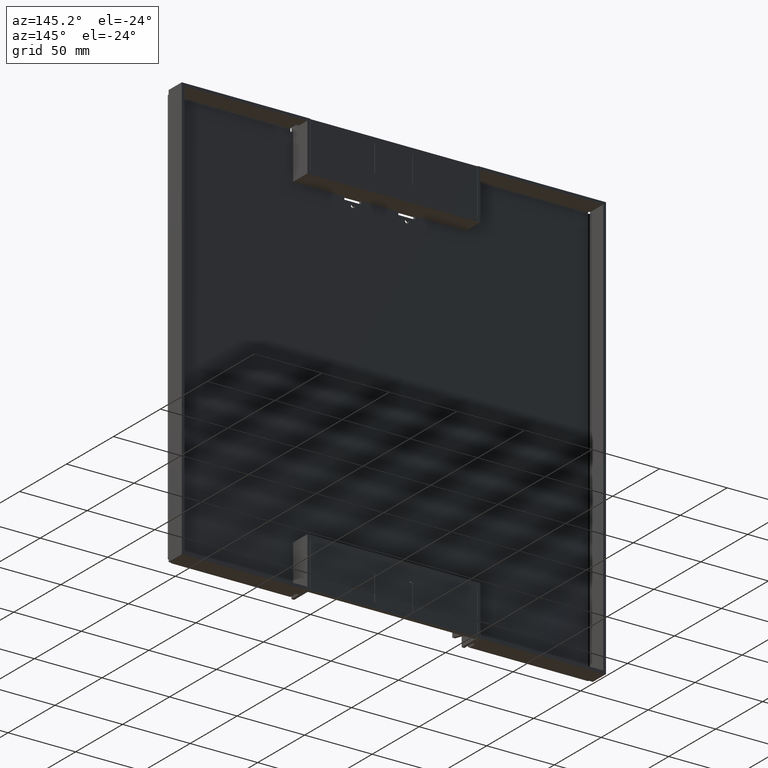
[diagram: clean part render]
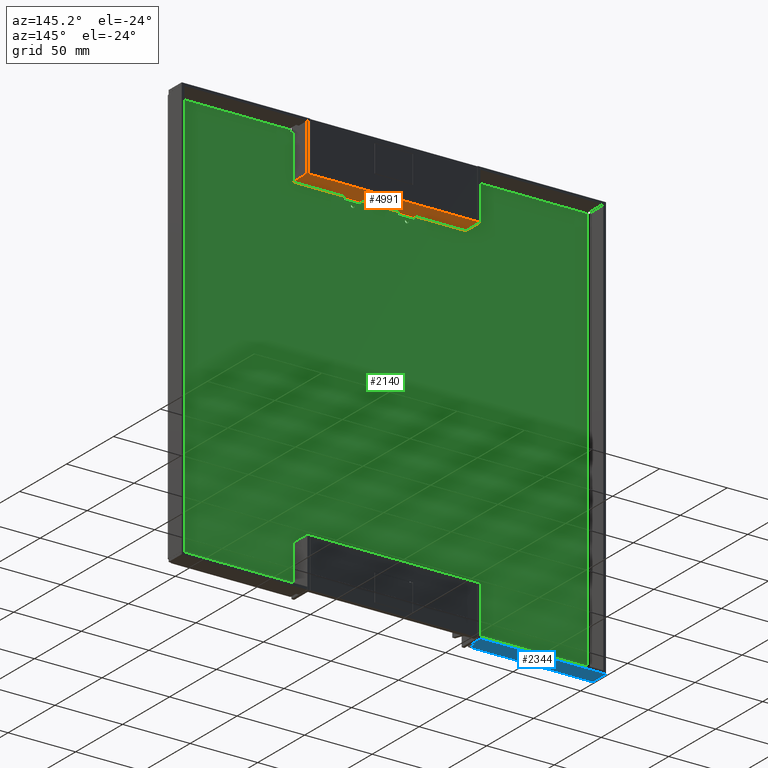
[diagram: same view with three faces highlighted in distinct colors, each labeled with its STEP entity id]
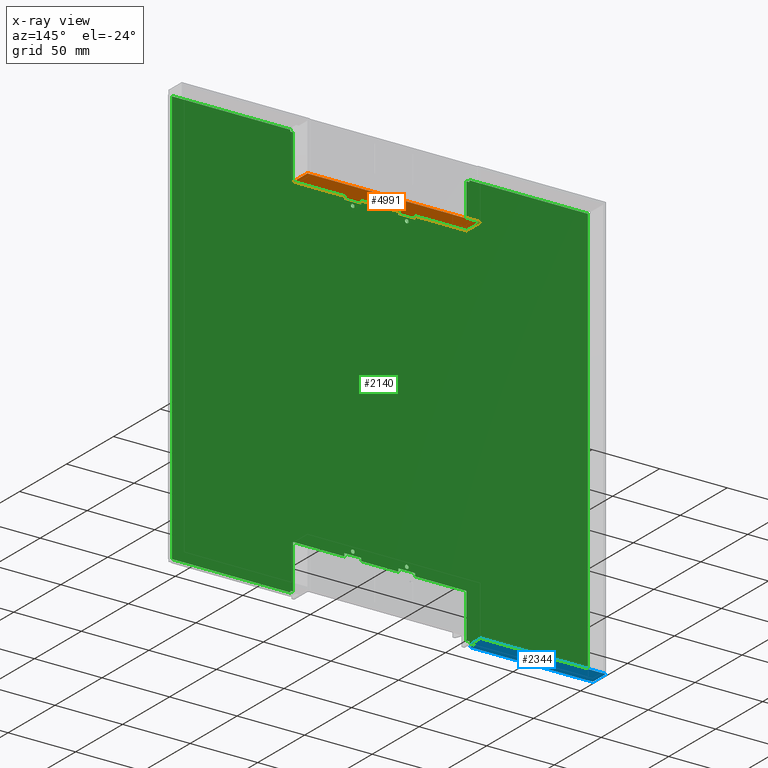
[diagram: x-ray of the same camera — body ghosted, the three highlighted faces saturated]
A machine part, auxiliary view with three faces highlighted in distinct colors.
The next image is the same camera in x-ray (body ghosted, the three faces saturated) — at least one of them is partly hidden behind the body in this view.
Their STEP definitions:

[orange] entity #4991 — the highlighted planar face has unit normal (0, 0, -1).
#4744=DIRECTION('',(-1.E0,0.E0,0.E0));
#4745=VECTOR('',#4744,1.28E2);
#4746=CARTESIAN_POINT('',(6.4E1,0.E0,-3.7E1));
#4747=LINE('',#4746,#4745);
#4758=DIRECTION('',(1.E0,0.E0,0.E0));
#4759=VECTOR('',#4758,1.28E2);
#4760=CARTESIAN_POINT('',(-6.4E1,1.7E1,-3.7E1));
#4761=LINE('',#4760,#4759);
#4793=DIRECTION('',(0.E0,-1.E0,0.E0));
#4794=VECTOR('',#4793,1.7E1);
#4795=CARTESIAN_POINT('',(-6.4E1,1.7E1,-3.7E1));
#4796=LINE('',#4795,#4794);
#4807=DIRECTION('',(0.E0,-1.E0,0.E0));
#4808=VECTOR('',#4807,1.7E1);
#4809=CARTESIAN_POINT('',(6.4E1,1.7E1,-3.7E1));
#4810=LINE('',#4809,#4808);
#4892=CARTESIAN_POINT('',(6.4E1,0.E0,-3.7E1));
#4893=VERTEX_POINT('',#4892);
#4894=CARTESIAN_POINT('',(-6.4E1,0.E0,-3.7E1));
#4895=VERTEX_POINT('',#4894);
#4904=CARTESIAN_POINT('',(-6.4E1,1.7E1,-3.7E1));
#4905=CARTESIAN_POINT('',(6.4E1,1.7E1,-3.7E1));
#4906=VERTEX_POINT('',#4904);
#4907=VERTEX_POINT('',#4905);
#4978=CARTESIAN_POINT('',(0.E0,0.E0,-3.7E1));
#4979=DIRECTION('',(0.E0,0.E0,-1.E0));
#4980=DIRECTION('',(-1.E0,0.E0,0.E0));
#4981=AXIS2_PLACEMENT_3D('',#4978,#4979,#4980);
#4982=PLANE('',#4981);
#4983=ORIENTED_EDGE('',*,*,#4929,.F.);
#4985=ORIENTED_EDGE('',*,*,#4984,.F.);
#4986=ORIENTED_EDGE('',*,*,#4960,.F.);
#4988=ORIENTED_EDGE('',*,*,#4987,.T.);
#4989=EDGE_LOOP('',(#4983,#4985,#4986,#4988));
#4990=FACE_OUTER_BOUND('',#4989,.F.);
#4929=EDGE_CURVE('',#4893,#4895,#4747,.T.);
#4960=EDGE_CURVE('',#4906,#4907,#4761,.T.);
#4984=EDGE_CURVE('',#4907,#4893,#4810,.T.);
#4987=EDGE_CURVE('',#4906,#4895,#4796,.T.);
#4991=ADVANCED_FACE('',(#4990),#4982,.T.);

[blue] entity #2344 — the highlighted planar face has unit normal (0, 0, 1).
#706=DIRECTION('',(0.E0,-1.E0,0.E0));
#707=VECTOR('',#706,5.1E0);
#708=CARTESIAN_POINT('',(6.62E1,8.1E0,1.57E2));
#709=LINE('',#708,#707);
#714=DIRECTION('',(1.E0,0.E0,0.E0));
#715=VECTOR('',#714,9.285E1);
#716=CARTESIAN_POINT('',(6.415E1,1.7E1,1.57E2));
#717=LINE('',#716,#715);
#718=DIRECTION('',(0.E0,-1.E0,0.E0));
#719=VECTOR('',#718,1.4E1);
#720=CARTESIAN_POINT('',(1.57E2,1.7E1,1.57E2));
#721=LINE('',#720,#719);
#722=DIRECTION('',(-1.E0,0.E0,0.E0));
#723=VECTOR('',#722,3.E0);
#724=CARTESIAN_POINT('',(1.57E2,3.E0,1.57E2));
#725=LINE('',#724,#723);
#726=DIRECTION('',(1.E0,0.E0,0.E0));
#727=VECTOR('',#726,2.05E0);
#728=CARTESIAN_POINT('',(6.415E1,8.1E0,1.57E2));
#729=LINE('',#728,#727);
#738=DIRECTION('',(0.E0,-1.E0,0.E0));
#739=VECTOR('',#738,8.9E0);
#740=CARTESIAN_POINT('',(6.415E1,1.7E1,1.57E2));
#741=LINE('',#740,#739);
#776=DIRECTION('',(1.E0,0.E0,0.E0));
#777=VECTOR('',#776,8.78E1);
#778=CARTESIAN_POINT('',(6.62E1,3.E0,1.57E2));
#779=LINE('',#778,#777);
#1652=CARTESIAN_POINT('',(1.54E2,3.E0,1.57E2));
#1653=VERTEX_POINT('',#1652);
#1656=CARTESIAN_POINT('',(6.62E1,3.E0,1.57E2));
#1657=VERTEX_POINT('',#1656);
#1658=CARTESIAN_POINT('',(6.62E1,8.1E0,1.57E2));
#1659=VERTEX_POINT('',#1658);
#1660=CARTESIAN_POINT('',(6.415E1,8.1E0,1.57E2));
#1661=VERTEX_POINT('',#1660);
#1662=CARTESIAN_POINT('',(6.415E1,1.7E1,1.57E2));
#1663=VERTEX_POINT('',#1662);
#1664=CARTESIAN_POINT('',(1.57E2,1.7E1,1.57E2));
#1665=VERTEX_POINT('',#1664);
#1666=CARTESIAN_POINT('',(1.57E2,3.E0,1.57E2));
#1667=VERTEX_POINT('',#1666);
#2324=CARTESIAN_POINT('',(-3.65904E1,0.E0,1.57E2));
#2325=DIRECTION('',(0.E0,0.E0,-1.E0));
#2326=DIRECTION('',(-1.E0,0.E0,0.E0));
#2327=AXIS2_PLACEMENT_3D('',#2324,#2325,#2326);
#2328=PLANE('',#2327);
#2329=ORIENTED_EDGE('',*,*,#2314,.F.);
#2331=ORIENTED_EDGE('',*,*,#2330,.F.);
#2333=ORIENTED_EDGE('',*,*,#2332,.F.);
#2335=ORIENTED_EDGE('',*,*,#2334,.T.);
#2337=ORIENTED_EDGE('',*,*,#2336,.T.);
#2339=ORIENTED_EDGE('',*,*,#2338,.T.);
#2341=ORIENTED_EDGE('',*,*,#2340,.F.);
#2342=EDGE_LOOP('',(#2329,#2331,#2333,#2335,#2337,#2339,#2341));
#2343=FACE_OUTER_BOUND('',#2342,.F.);
#2314=EDGE_CURVE('',#1659,#1657,#709,.T.);
#2330=EDGE_CURVE('',#1661,#1659,#729,.T.);
#2332=EDGE_CURVE('',#1663,#1661,#741,.T.);
#2334=EDGE_CURVE('',#1663,#1665,#717,.T.);
#2336=EDGE_CURVE('',#1665,#1667,#721,.T.);
#2338=EDGE_CURVE('',#1667,#1653,#725,.T.);
#2340=EDGE_CURVE('',#1657,#1653,#779,.T.);
#2344=ADVANCED_FACE('',(#2343),#2328,.F.);

[green] entity #2140 — the highlighted planar face has unit normal (0, 1, 0).
#494=DIRECTION('',(0.E0,0.E0,-1.E0));
#495=VECTOR('',#494,3.08E2);
#496=CARTESIAN_POINT('',(1.54E2,2.E0,1.54E2));
#497=LINE('',#496,#495);
#502=DIRECTION('',(1.184237892933E-14,0.E0,-1.E0));
#503=VECTOR('',#502,1.2E0);
#504=CARTESIAN_POINT('',(6.62E1,2.E0,-1.528E2));
#505=LINE('',#504,#503);
#506=DIRECTION('',(-1.E0,0.E0,0.E0));
#507=VECTOR('',#506,2.05E0);
#508=CARTESIAN_POINT('',(6.62E1,2.E0,1.528E2));
#509=LINE('',#508,#507);
#510=DIRECTION('',(0.E0,0.E0,-1.E0));
#511=VECTOR('',#510,3.3E1);
#512=CARTESIAN_POINT('',(6.415E1,2.E0,1.528E2));
#513=LINE('',#512,#511);
#514=DIRECTION('',(-1.E0,0.E0,0.E0));
#515=VECTOR('',#514,2.05E0);
#516=CARTESIAN_POINT('',(-6.415E1,2.E0,1.528E2));
#517=LINE('',#516,#515);
#518=DIRECTION('',(-1.184237892933E-14,0.E0,1.E0));
#519=VECTOR('',#518,1.2E0);
#520=CARTESIAN_POINT('',(-6.62E1,2.E0,1.528E2));
#521=LINE('',#520,#519);
#522=DIRECTION('',(1.E0,0.E0,0.E0));
#523=VECTOR('',#522,3.795E1);
#524=CARTESIAN_POINT('',(-6.415E1,2.E0,-1.198E2));
#525=LINE('',#524,#523);
#526=DIRECTION('',(0.E0,0.E0,1.E0));
#527=VECTOR('',#526,2.2E0);
#528=CARTESIAN_POINT('',(-2.62E1,2.E0,-1.198E2));
#529=LINE('',#528,#527);
#530=DIRECTION('',(1.E0,0.E0,0.E0));
#531=VECTOR('',#530,1.24E1);
#532=CARTESIAN_POINT('',(-2.62E1,2.E0,-1.176E2));
#533=LINE('',#532,#531);
#534=DIRECTION('',(0.E0,0.E0,-1.E0));
#535=VECTOR('',#534,2.2E0);
#536=CARTESIAN_POINT('',(-1.38E1,2.E0,-1.176E2));
#537=LINE('',#536,#535);
#538=DIRECTION('',(1.E0,0.E0,0.E0));
#539=VECTOR('',#538,2.76E1);
#540=CARTESIAN_POINT('',(-1.38E1,2.E0,-1.198E2));
#541=LINE('',#540,#539);
#542=DIRECTION('',(0.E0,0.E0,1.E0));
#543=VECTOR('',#542,2.2E0);
#544=CARTESIAN_POINT('',(1.38E1,2.E0,-1.198E2));
#545=LINE('',#544,#543);
#546=DIRECTION('',(1.E0,0.E0,0.E0));
#547=VECTOR('',#546,1.24E1);
#548=CARTESIAN_POINT('',(1.38E1,2.E0,-1.176E2));
#549=LINE('',#548,#547);
#550=DIRECTION('',(0.E0,0.E0,-1.E0));
#551=VECTOR('',#550,2.2E0);
#552=CARTESIAN_POINT('',(2.62E1,2.E0,-1.176E2));
#553=LINE('',#552,#551);
#554=DIRECTION('',(1.E0,0.E0,0.E0));
#555=VECTOR('',#554,3.795E1);
#556=CARTESIAN_POINT('',(2.62E1,2.E0,-1.198E2));
#557=LINE('',#556,#555);
#558=DIRECTION('',(0.E0,0.E0,-1.E0));
#559=VECTOR('',#558,3.3E1);
#560=CARTESIAN_POINT('',(6.415E1,2.E0,-1.198E2));
#561=LINE('',#560,#559);
#562=CARTESIAN_POINT('',(2.E1,2.E0,1.15E2));
#563=DIRECTION('',(0.E0,1.E0,0.E0));
#564=DIRECTION('',(1.E0,0.E0,0.E0));
#565=AXIS2_PLACEMENT_3D('',#562,#563,#564);
#567=CARTESIAN_POINT('',(2.E1,2.E0,1.15E2));
#568=DIRECTION('',(0.E0,1.E0,0.E0));
#569=DIRECTION('',(-1.E0,0.E0,0.E0));
#570=AXIS2_PLACEMENT_3D('',#567,#568,#569);
#572=CARTESIAN_POINT('',(-2.E1,2.E0,1.15E2));
#573=DIRECTION('',(0.E0,1.E0,0.E0));
#574=DIRECTION('',(1.E0,0.E0,0.E0));
#575=AXIS2_PLACEMENT_3D('',#572,#573,#574);
#577=CARTESIAN_POINT('',(-2.E1,2.E0,1.15E2));
#578=DIRECTION('',(0.E0,1.E0,0.E0));
#579=DIRECTION('',(-1.E0,0.E0,0.E0));
#580=AXIS2_PLACEMENT_3D('',#577,#578,#579);
#582=CARTESIAN_POINT('',(-2.E1,2.E0,-1.15E2));
#583=DIRECTION('',(0.E0,1.E0,0.E0));
#584=DIRECTION('',(-1.E0,0.E0,0.E0));
#585=AXIS2_PLACEMENT_3D('',#582,#583,#584);
#587=CARTESIAN_POINT('',(-2.E1,2.E0,-1.15E2));
#588=DIRECTION('',(0.E0,1.E0,0.E0));
#589=DIRECTION('',(1.E0,0.E0,0.E0));
#590=AXIS2_PLACEMENT_3D('',#587,#588,#589);
#592=CARTESIAN_POINT('',(2.E1,2.E0,-1.15E2));
#593=DIRECTION('',(0.E0,1.E0,0.E0));
#594=DIRECTION('',(-1.E0,0.E0,0.E0));
#595=AXIS2_PLACEMENT_3D('',#592,#593,#594);
#597=CARTESIAN_POINT('',(2.E1,2.E0,-1.15E2));
#598=DIRECTION('',(0.E0,1.E0,0.E0));
#599=DIRECTION('',(1.E0,0.E0,0.E0));
#600=AXIS2_PLACEMENT_3D('',#597,#598,#599);
#606=DIRECTION('',(-1.E0,0.E0,0.E0));
#607=VECTOR('',#606,8.78E1);
#608=CARTESIAN_POINT('',(1.54E2,2.E0,-1.54E2));
#609=LINE('',#608,#607);
#686=DIRECTION('',(1.E0,0.E0,0.E0));
#687=VECTOR('',#686,8.78E1);
#688=CARTESIAN_POINT('',(6.62E1,2.E0,1.54E2));
#689=LINE('',#688,#687);
#798=DIRECTION('',(-1.184237892933E-14,0.E0,1.E0));
#799=VECTOR('',#798,1.2E0);
#800=CARTESIAN_POINT('',(6.62E1,2.E0,1.528E2));
#801=LINE('',#800,#799);
#822=DIRECTION('',(1.E0,0.E0,0.E0));
#823=VECTOR('',#822,3.795E1);
#824=CARTESIAN_POINT('',(2.62E1,2.E0,1.198E2));
#825=LINE('',#824,#823);
#830=DIRECTION('',(0.E0,0.E0,1.E0));
#831=VECTOR('',#830,2.2E0);
#832=CARTESIAN_POINT('',(2.62E1,2.E0,1.176E2));
#833=LINE('',#832,#831);
#838=DIRECTION('',(1.E0,0.E0,0.E0));
#839=VECTOR('',#838,1.24E1);
#840=CARTESIAN_POINT('',(1.38E1,2.E0,1.176E2));
#841=LINE('',#840,#839);
#846=DIRECTION('',(0.E0,0.E0,-1.E0));
#847=VECTOR('',#846,2.2E0);
#848=CARTESIAN_POINT('',(1.38E1,2.E0,1.198E2));
#849=LINE('',#848,#847);
#854=DIRECTION('',(1.E0,0.E0,0.E0));
#855=VECTOR('',#854,2.76E1);
#856=CARTESIAN_POINT('',(-1.38E1,2.E0,1.198E2));
#857=LINE('',#856,#855);
#862=DIRECTION('',(0.E0,0.E0,1.E0));
#863=VECTOR('',#862,2.2E0);
#864=CARTESIAN_POINT('',(-1.38E1,2.E0,1.176E2));
#865=LINE('',#864,#863);
#870=DIRECTION('',(1.E0,0.E0,0.E0));
#871=VECTOR('',#870,1.24E1);
#872=CARTESIAN_POINT('',(-2.62E1,2.E0,1.176E2));
#873=LINE('',#872,#871);
#878=DIRECTION('',(0.E0,0.E0,-1.E0));
#879=VECTOR('',#878,2.2E0);
#880=CARTESIAN_POINT('',(-2.62E1,2.E0,1.198E2));
#881=LINE('',#880,#879);
#886=DIRECTION('',(1.E0,0.E0,0.E0));
#887=VECTOR('',#886,3.795E1);
#888=CARTESIAN_POINT('',(-6.415E1,2.E0,1.198E2));
#889=LINE('',#888,#887);
#894=DIRECTION('',(0.E0,0.E0,-1.E0));
#895=VECTOR('',#894,3.3E1);
#896=CARTESIAN_POINT('',(-6.415E1,2.E0,1.528E2));
#897=LINE('',#896,#895);
#1004=DIRECTION('',(0.E0,0.E0,1.E0));
#1005=VECTOR('',#1004,3.08E2);
#1006=CARTESIAN_POINT('',(-1.54E2,2.E0,-1.54E2));
#1007=LINE('',#1006,#1005);
#1062=DIRECTION('',(1.184237892933E-14,0.E0,-1.E0));
#1063=VECTOR('',#1062,1.2E0);
#1064=CARTESIAN_POINT('',(-6.62E1,2.E0,-1.528E2));
#1065=LINE('',#1064,#1063);
#1070=DIRECTION('',(-1.E0,0.E0,0.E0));
#1071=VECTOR('',#1070,2.05E0);
#1072=CARTESIAN_POINT('',(-6.415E1,2.E0,-1.528E2));
#1073=LINE('',#1072,#1071);
#1082=DIRECTION('',(0.E0,0.E0,-1.E0));
#1083=VECTOR('',#1082,3.3E1);
#1084=CARTESIAN_POINT('',(-6.415E1,2.E0,-1.198E2));
#1085=LINE('',#1084,#1083);
#1166=DIRECTION('',(-1.E0,0.E0,0.E0));
#1167=VECTOR('',#1166,2.05E0);
#1168=CARTESIAN_POINT('',(6.62E1,2.E0,-1.528E2));
#1169=LINE('',#1168,#1167);
#1174=DIRECTION('',(-1.E0,0.E0,0.E0));
#1175=VECTOR('',#1174,8.78E1);
#1176=CARTESIAN_POINT('',(-6.62E1,2.E0,-1.54E2));
#1177=LINE('',#1176,#1175);
#1290=DIRECTION('',(1.E0,0.E0,0.E0));
#1291=VECTOR('',#1290,8.78E1);
#1292=CARTESIAN_POINT('',(-1.54E2,2.E0,1.54E2));
#1293=LINE('',#1292,#1291);
#1532=CARTESIAN_POINT('',(1.865E1,2.E0,1.15E2));
#1533=VERTEX_POINT('',#1532);
#1534=CARTESIAN_POINT('',(2.135E1,2.E0,1.15E2));
#1535=VERTEX_POINT('',#1534);
#1536=CARTESIAN_POINT('',(6.62E1,2.E0,-1.528E2));
#1537=CARTESIAN_POINT('',(6.62E1,2.E0,-1.54E2));
#1538=VERTEX_POINT('',#1536);
#1539=VERTEX_POINT('',#1537);
#1540=CARTESIAN_POINT('',(1.54E2,2.E0,-1.54E2));
#1541=VERTEX_POINT('',#1540);
#1542=CARTESIAN_POINT('',(1.54E2,2.E0,1.54E2));
#1543=VERTEX_POINT('',#1542);
#1544=CARTESIAN_POINT('',(6.62E1,2.E0,1.54E2));
#1545=VERTEX_POINT('',#1544);
#1546=CARTESIAN_POINT('',(6.62E1,2.E0,1.528E2));
#1547=VERTEX_POINT('',#1546);
#1548=CARTESIAN_POINT('',(6.415E1,2.E0,1.528E2));
#1549=VERTEX_POINT('',#1548);
#1550=CARTESIAN_POINT('',(6.415E1,2.E0,1.198E2));
#1551=VERTEX_POINT('',#1550);
#1552=CARTESIAN_POINT('',(2.62E1,2.E0,1.198E2));
#1553=VERTEX_POINT('',#1552);
#1554=CARTESIAN_POINT('',(2.62E1,2.E0,1.176E2));
#1555=VERTEX_POINT('',#1554);
#1556=CARTESIAN_POINT('',(1.38E1,2.E0,1.176E2));
#1557=VERTEX_POINT('',#1556);
#1558=CARTESIAN_POINT('',(1.38E1,2.E0,1.198E2));
#1559=VERTEX_POINT('',#1558);
#1560=CARTESIAN_POINT('',(-1.38E1,2.E0,1.198E2));
#1561=VERTEX_POINT('',#1560);
#1562=CARTESIAN_POINT('',(-1.38E1,2.E0,1.176E2));
#1563=VERTEX_POINT('',#1562);
#1564=CARTESIAN_POINT('',(-2.62E1,2.E0,1.176E2));
#1565=VERTEX_POINT('',#1564);
#1566=CARTESIAN_POINT('',(-2.62E1,2.E0,1.198E2));
#1567=VERTEX_POINT('',#1566);
#1568=CARTESIAN_POINT('',(-6.415E1,2.E0,1.198E2));
#1569=VERTEX_POINT('',#1568);
#1570=CARTESIAN_POINT('',(-6.415E1,2.E0,1.528E2));
#1571=VERTEX_POINT('',#1570);
#1572=CARTESIAN_POINT('',(-6.62E1,2.E0,1.528E2));
#1573=VERTEX_POINT('',#1572);
#1574=CARTESIAN_POINT('',(-6.62E1,2.E0,1.54E2));
#1575=VERTEX_POINT('',#1574);
#1576=CARTESIAN_POINT('',(-1.54E2,2.E0,1.54E2));
#1577=VERTEX_POINT('',#1576);
#1578=CARTESIAN_POINT('',(-1.54E2,2.E0,-1.54E2));
#1579=VERTEX_POINT('',#1578);
#1580=CARTESIAN_POINT('',(-6.62E1,2.E0,-1.54E2));
#1581=VERTEX_POINT('',#1580);
#1582=CARTESIAN_POINT('',(-6.62E1,2.E0,-1.528E2));
#1583=VERTEX_POINT('',#1582);
#1584=CARTESIAN_POINT('',(-6.415E1,2.E0,-1.528E2));
#1585=VERTEX_POINT('',#1584);
#1586=CARTESIAN_POINT('',(-6.415E1,2.E0,-1.198E2));
#1587=VERTEX_POINT('',#1586);
#1588=CARTESIAN_POINT('',(-2.62E1,2.E0,-1.198E2));
#1589=VERTEX_POINT('',#1588);
#1590=CARTESIAN_POINT('',(-2.62E1,2.E0,-1.176E2));
#1591=VERTEX_POINT('',#1590);
#1592=CARTESIAN_POINT('',(-1.38E1,2.E0,-1.176E2));
#1593=VERTEX_POINT('',#1592);
#1594=CARTESIAN_POINT('',(-1.38E1,2.E0,-1.198E2));
#1595=VERTEX_POINT('',#1594);
#1596=CARTESIAN_POINT('',(1.38E1,2.E0,-1.198E2));
#1597=VERTEX_POINT('',#1596);
#1598=CARTESIAN_POINT('',(1.38E1,2.E0,-1.176E2));
#1599=VERTEX_POINT('',#1598);
#1600=CARTESIAN_POINT('',(2.62E1,2.E0,-1.176E2));
#1601=VERTEX_POINT('',#1600);
#1602=CARTESIAN_POINT('',(2.62E1,2.E0,-1.198E2));
#1603=VERTEX_POINT('',#1602);
#1604=CARTESIAN_POINT('',(6.415E1,2.E0,-1.198E2));
#1605=VERTEX_POINT('',#1604);
#1606=CARTESIAN_POINT('',(6.415E1,2.E0,-1.528E2));
#1607=VERTEX_POINT('',#1606);
#1608=CARTESIAN_POINT('',(-1.865E1,2.E0,1.15E2));
#1609=CARTESIAN_POINT('',(-2.135E1,2.E0,1.15E2));
#1610=VERTEX_POINT('',#1608);
#1611=VERTEX_POINT('',#1609);
#1612=CARTESIAN_POINT('',(-2.135E1,2.E0,-1.15E2));
#1613=CARTESIAN_POINT('',(-1.865E1,2.E0,-1.15E2));
#1614=VERTEX_POINT('',#1612);
#1615=VERTEX_POINT('',#1613);
#1616=CARTESIAN_POINT('',(1.865E1,2.E0,-1.15E2));
#1617=CARTESIAN_POINT('',(2.135E1,2.E0,-1.15E2));
#1618=VERTEX_POINT('',#1616);
#1619=VERTEX_POINT('',#1617);
#2039=CARTESIAN_POINT('',(0.E0,2.E0,0.E0));
#2040=DIRECTION('',(0.E0,1.E0,0.E0));
#2041=DIRECTION('',(1.E0,0.E0,0.E0));
#2042=AXIS2_PLACEMENT_3D('',#2039,#2040,#2041);
#2043=PLANE('',#2042);
#2044=ORIENTED_EDGE('',*,*,#1892,.T.);
#2046=ORIENTED_EDGE('',*,*,#2045,.F.);
#2047=ORIENTED_EDGE('',*,*,#2030,.F.);
#2049=ORIENTED_EDGE('',*,*,#2048,.F.);
#2051=ORIENTED_EDGE('',*,*,#2050,.F.);
#2053=ORIENTED_EDGE('',*,*,#2052,.T.);
#2055=ORIENTED_EDGE('',*,*,#2054,.T.);
#2057=ORIENTED_EDGE('',*,*,#2056,.F.);
#2059=ORIENTED_EDGE('',*,*,#2058,.F.);
#2061=ORIENTED_EDGE('',*,*,#2060,.F.);
#2063=ORIENTED_EDGE('',*,*,#2062,.F.);
#2065=ORIENTED_EDGE('',*,*,#2064,.F.);
#2067=ORIENTED_EDGE('',*,*,#2066,.F.);
#2069=ORIENTED_EDGE('',*,*,#2068,.F.);
#2071=ORIENTED_EDGE('',*,*,#2070,.F.);
#2073=ORIENTED_EDGE('',*,*,#2072,.F.);
#2075=ORIENTED_EDGE('',*,*,#2074,.F.);
#2077=ORIENTED_EDGE('',*,*,#2076,.T.);
#2079=ORIENTED_EDGE('',*,*,#2078,.T.);
#2081=ORIENTED_EDGE('',*,*,#2080,.F.);
#2083=ORIENTED_EDGE('',*,*,#2082,.F.);
#2085=ORIENTED_EDGE('',*,*,#2084,.F.);
#2087=ORIENTED_EDGE('',*,*,#2086,.F.);
#2089=ORIENTED_EDGE('',*,*,#2088,.F.);
#2091=ORIENTED_EDGE('',*,*,#2090,.F.);
#2093=ORIENTED_EDGE('',*,*,#2092,.T.);
#2095=ORIENTED_EDGE('',*,*,#2094,.T.);
#2097=ORIENTED_EDGE('',*,*,#2096,.T.);
#2099=ORIENTED_EDGE('',*,*,#2098,.T.);
#2101=ORIENTED_EDGE('',*,*,#2100,.T.);
#2103=ORIENTED_EDGE('',*,*,#2102,.T.);
#2105=ORIENTED_EDGE('',*,*,#2104,.T.);
#2107=ORIENTED_EDGE('',*,*,#2106,.T.);
#2109=ORIENTED_EDGE('',*,*,#2108,.T.);
#2111=ORIENTED_EDGE('',*,*,#2110,.T.);
#2113=ORIENTED_EDGE('',*,*,#2112,.F.);
#2114=EDGE_LOOP('',(#2044,#2046,#2047,#2049,#2051,#2053,#2055,#2057,#2059,#2061,
#2063,#2065,#2067,#2069,#2071,#2073,#2075,#2077,#2079,#2081,#2083,#2085,#2087,
#2089,#2091,#2093,#2095,#2097,#2099,#2101,#2103,#2105,#2107,#2109,#2111,#2113));
#2115=FACE_OUTER_BOUND('',#2114,.F.);
#2117=ORIENTED_EDGE('',*,*,#2116,.T.);
#2119=ORIENTED_EDGE('',*,*,#2118,.T.);
#2120=EDGE_LOOP('',(#2117,#2119));
#2121=FACE_BOUND('',#2120,.F.);
#2123=ORIENTED_EDGE('',*,*,#2122,.T.);
#2125=ORIENTED_EDGE('',*,*,#2124,.T.);
#2126=EDGE_LOOP('',(#2123,#2125));
#2127=FACE_BOUND('',#2126,.F.);
#2129=ORIENTED_EDGE('',*,*,#2128,.T.);
#2131=ORIENTED_EDGE('',*,*,#2130,.T.);
#2132=EDGE_LOOP('',(#2129,#2131));
#2133=FACE_BOUND('',#2132,.F.);
#2135=ORIENTED_EDGE('',*,*,#2134,.T.);
#2137=ORIENTED_EDGE('',*,*,#2136,.T.);
#2138=EDGE_LOOP('',(#2135,#2137));
#2139=FACE_BOUND('',#2138,.F.);
#566=CIRCLE('',#565,1.35E0);
#571=CIRCLE('',#570,1.35E0);
#576=CIRCLE('',#575,1.35E0);
#581=CIRCLE('',#580,1.35E0);
#586=CIRCLE('',#585,1.35E0);
#591=CIRCLE('',#590,1.35E0);
#596=CIRCLE('',#595,1.35E0);
#601=CIRCLE('',#600,1.35E0);
#1892=EDGE_CURVE('',#1538,#1539,#505,.T.);
#2030=EDGE_CURVE('',#1543,#1541,#497,.T.);
#2045=EDGE_CURVE('',#1541,#1539,#609,.T.);
#2048=EDGE_CURVE('',#1545,#1543,#689,.T.);
#2050=EDGE_CURVE('',#1547,#1545,#801,.T.);
#2052=EDGE_CURVE('',#1547,#1549,#509,.T.);
#2054=EDGE_CURVE('',#1549,#1551,#513,.T.);
#2056=EDGE_CURVE('',#1553,#1551,#825,.T.);
#2058=EDGE_CURVE('',#1555,#1553,#833,.T.);
#2060=EDGE_CURVE('',#1557,#1555,#841,.T.);
#2062=EDGE_CURVE('',#1559,#1557,#849,.T.);
#2064=EDGE_CURVE('',#1561,#1559,#857,.T.);
#2066=EDGE_CURVE('',#1563,#1561,#865,.T.);
#2068=EDGE_CURVE('',#1565,#1563,#873,.T.);
#2070=EDGE_CURVE('',#1567,#1565,#881,.T.);
#2072=EDGE_CURVE('',#1569,#1567,#889,.T.);
#2074=EDGE_CURVE('',#1571,#1569,#897,.T.);
#2076=EDGE_CURVE('',#1571,#1573,#517,.T.);
#2078=EDGE_CURVE('',#1573,#1575,#521,.T.);
#2080=EDGE_CURVE('',#1577,#1575,#1293,.T.);
#2082=EDGE_CURVE('',#1579,#1577,#1007,.T.);
#2084=EDGE_CURVE('',#1581,#1579,#1177,.T.);
#2086=EDGE_CURVE('',#1583,#1581,#1065,.T.);
#2088=EDGE_CURVE('',#1585,#1583,#1073,.T.);
#2090=EDGE_CURVE('',#1587,#1585,#1085,.T.);
#2092=EDGE_CURVE('',#1587,#1589,#525,.T.);
#2094=EDGE_CURVE('',#1589,#1591,#529,.T.);
#2096=EDGE_CURVE('',#1591,#1593,#533,.T.);
#2098=EDGE_CURVE('',#1593,#1595,#537,.T.);
#2100=EDGE_CURVE('',#1595,#1597,#541,.T.);
#2102=EDGE_CURVE('',#1597,#1599,#545,.T.);
#2104=EDGE_CURVE('',#1599,#1601,#549,.T.);
#2106=EDGE_CURVE('',#1601,#1603,#553,.T.);
#2108=EDGE_CURVE('',#1603,#1605,#557,.T.);
#2110=EDGE_CURVE('',#1605,#1607,#561,.T.);
#2112=EDGE_CURVE('',#1538,#1607,#1169,.T.);
#2116=EDGE_CURVE('',#1535,#1533,#566,.T.);
#2118=EDGE_CURVE('',#1533,#1535,#571,.T.);
#2122=EDGE_CURVE('',#1610,#1611,#576,.T.);
#2124=EDGE_CURVE('',#1611,#1610,#581,.T.);
#2128=EDGE_CURVE('',#1614,#1615,#586,.T.);
#2130=EDGE_CURVE('',#1615,#1614,#591,.T.);
#2134=EDGE_CURVE('',#1618,#1619,#596,.T.);
#2136=EDGE_CURVE('',#1619,#1618,#601,.T.);
#2140=ADVANCED_FACE('',(#2115,#2121,#2127,#2133,#2139),#2043,.T.);